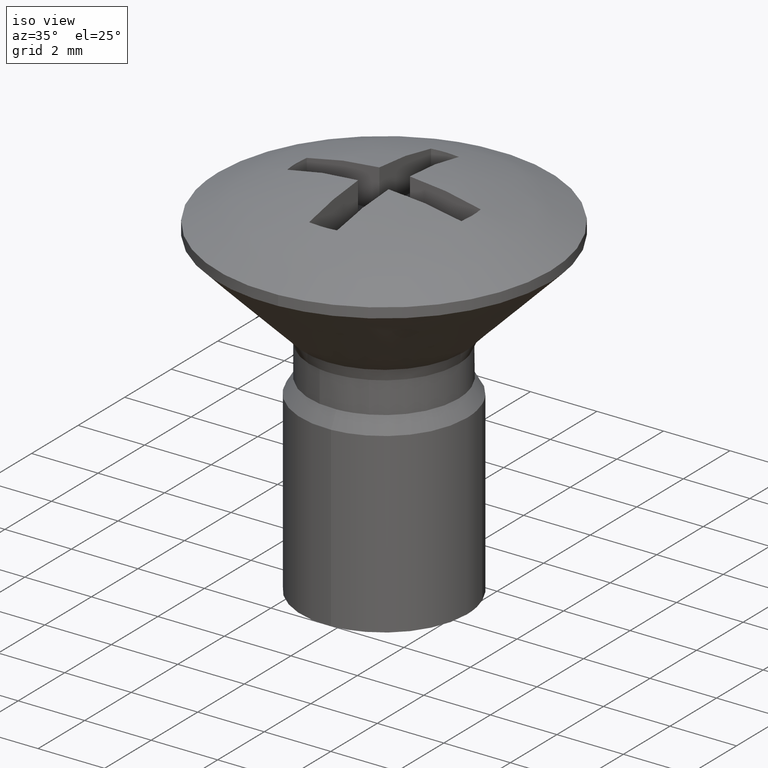
[diagram: clean part render]
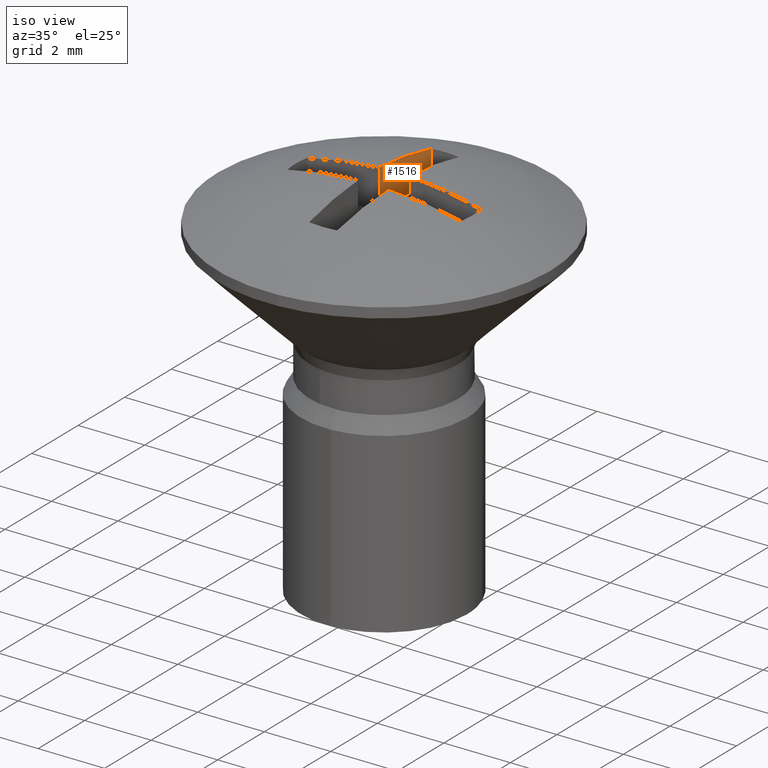
[diagram: same view with one face highlighted and labeled with its STEP entity id]
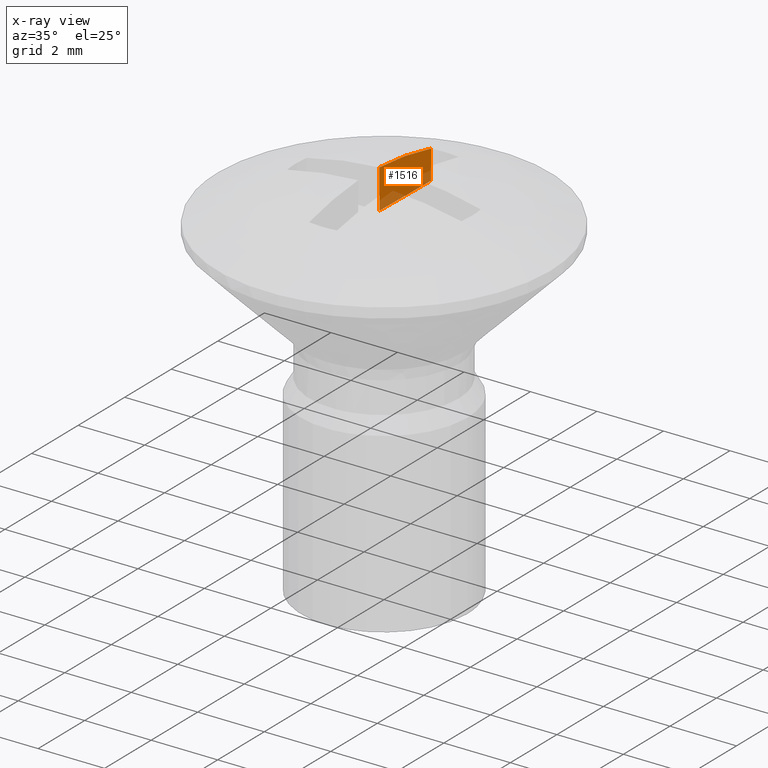
[diagram: x-ray of the same camera — body ghosted, the highlighted face saturated]
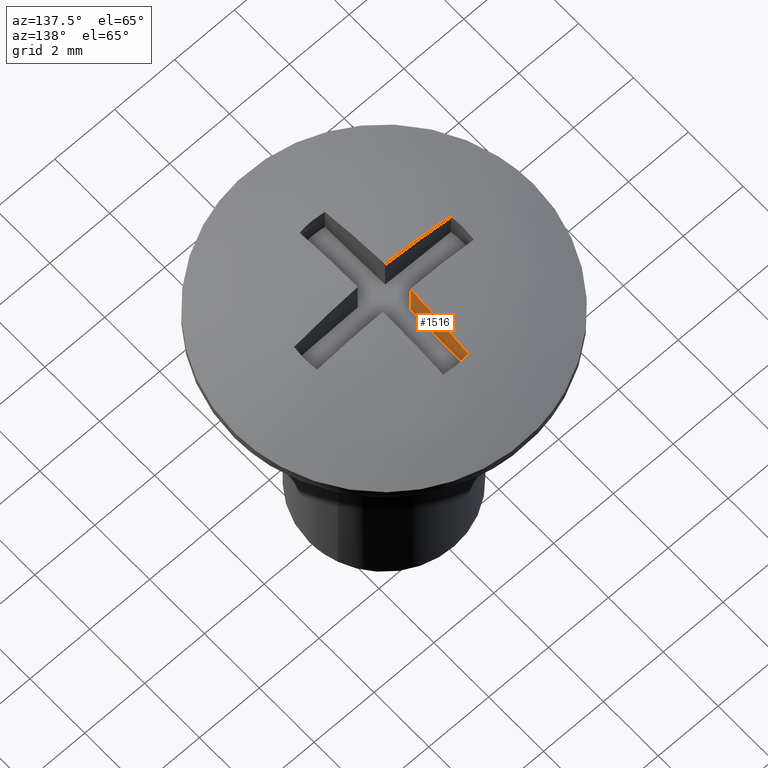
[diagram: same view with one face highlighted and labeled with its STEP entity id]
A machine part, iso view. The second image highlights one B-rep face of the part: STEP entity #1516.
The next image is the same camera in x-ray: the body ghosted, the highlighted face saturated — about 21% of this face is hidden behind the body in this view.
A second angle (auxiliary view) of the same face is appended — the face is thin or edge-on in the first view.
In plain terms, the highlighted face is a freeform B-spline surface patch.
Its self-contained STEP definition (entity closure, byte-faithful):
#1037=CARTESIAN_POINT('',(-0.419991153752181,2.616506722859680,0.0));
#1038=VERTEX_POINT('',#1037);
#1052=CARTESIAN_POINT('',(-0.457700425241844,0.456477945823886,0.0));
#1053=VERTEX_POINT('',#1052);
#1054=CARTESIAN_POINT('',(-0.419991153752181,2.616506722859680,0.0));
#1055=CARTESIAN_POINT('',(-0.457700425241844,0.456477945823886,0.0));
#1056=QUASI_UNIFORM_CURVE('',1,(#1054,#1055),.UNSPECIFIED.,.F.,.U.);
#1057=EDGE_CURVE('',#1038,#1053,#1056,.T.);
#1462=CARTESIAN_POINT('',(-0.457700425241844,0.456477945823886,1.181018722340090));
#1463=VERTEX_POINT('',#1462);
#1479=CARTESIAN_POINT('',(-0.457700425241844,0.456477945823886,1.181018722340090));
#1480=CARTESIAN_POINT('',(-0.457700425241844,0.456477945823886,0.0));
#1481=QUASI_UNIFORM_CURVE('',1,(#1479,#1480),.UNSPECIFIED.,.F.,.U.);
#1482=EDGE_CURVE('',#1463,#1053,#1481,.T.);
#1487=CARTESIAN_POINT('',(-0.459584003633653,0.348584492320699,-0.058991882891844));
#1488=CARTESIAN_POINT('',(-0.418107574686078,2.724400214987193,-0.058991882891844));
#1489=CARTESIAN_POINT('',(-0.459584003633653,0.348584492320699,1.240010636909324));
#1490=CARTESIAN_POINT('',(-0.418107574686078,2.724400214987193,1.240010636909324));
#1491=B_SPLINE_SURFACE_WITH_KNOTS('',1,1,((#1487,#1489),(#1488,#1490)),.UNSPECIFIED.,.F.,.F.,.U.,(2,2),(2,2),(0.0,2.376177737928617),(0.041708334948495,0.958291687403247),.UNSPECIFIED.);
#1492=CARTESIAN_POINT('',(-0.419991153752181,2.616506722859680,0.876530517014021));
#1493=VERTEX_POINT('',#1492);
#1494=CARTESIAN_POINT('',(-0.419991153752181,2.616506722859679,0.876530517014019));
#1495=CARTESIAN_POINT('',(-0.438581116239210,1.551653111274933,1.136357424267075));
#1496=CARTESIAN_POINT('',(-0.457700425241845,0.456477945823887,1.181018722340089));
#1504=(BOUNDED_CURVE()B_SPLINE_CURVE(2,(#1494,#1495,#1496),.UNSPECIFIED.,.F.,.U.)CURVE()GEOMETRIC_REPRESENTATION_ITEM()QUASI_UNIFORM_CURVE()RATIONAL_B_SPLINE_CURVE((1.0,0.995076795455649,1.0))REPRESENTATION_ITEM(''));
#1505=EDGE_CURVE('',#1493,#1463,#1504,.T.);
#1506=ORIENTED_EDGE('',*,*,#1505,.T.);
#1507=ORIENTED_EDGE('',*,*,#1482,.T.);
#1508=ORIENTED_EDGE('',*,*,#1057,.F.);
#1509=CARTESIAN_POINT('',(-0.419991153752181,2.616506722859680,0.876530517014021));
#1510=CARTESIAN_POINT('',(-0.419991153752181,2.616506722859680,0.0));
#1511=QUASI_UNIFORM_CURVE('',1,(#1509,#1510),.UNSPECIFIED.,.F.,.U.);
#1512=EDGE_CURVE('',#1493,#1038,#1511,.T.);
#1513=ORIENTED_EDGE('',*,*,#1512,.F.);
#1514=EDGE_LOOP('',(#1506,#1507,#1508,#1513));
#1515=FACE_OUTER_BOUND('',#1514,.T.);
#1516=ADVANCED_FACE('',(#1515),#1491,.T.);